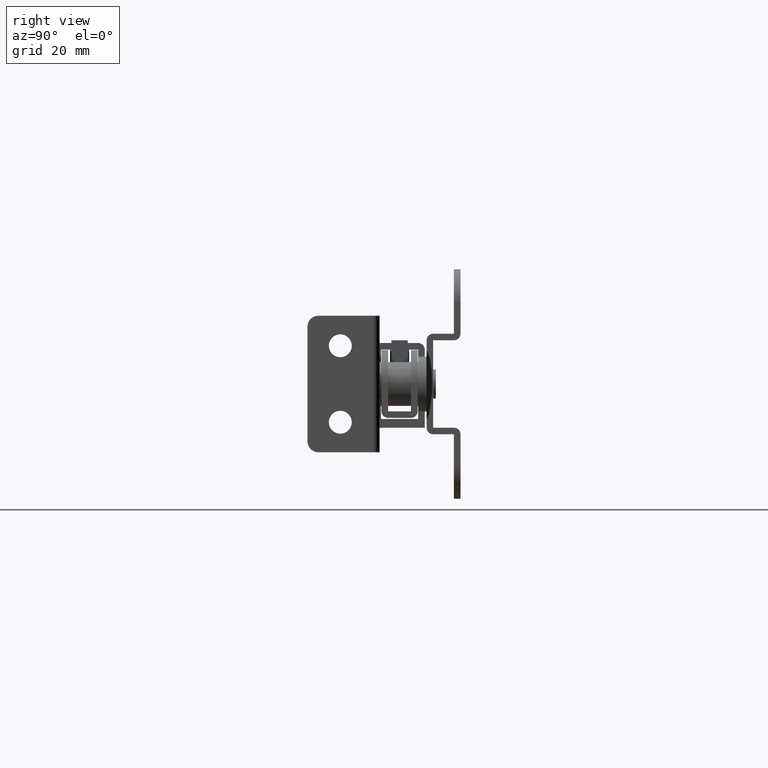
[diagram: clean part render]
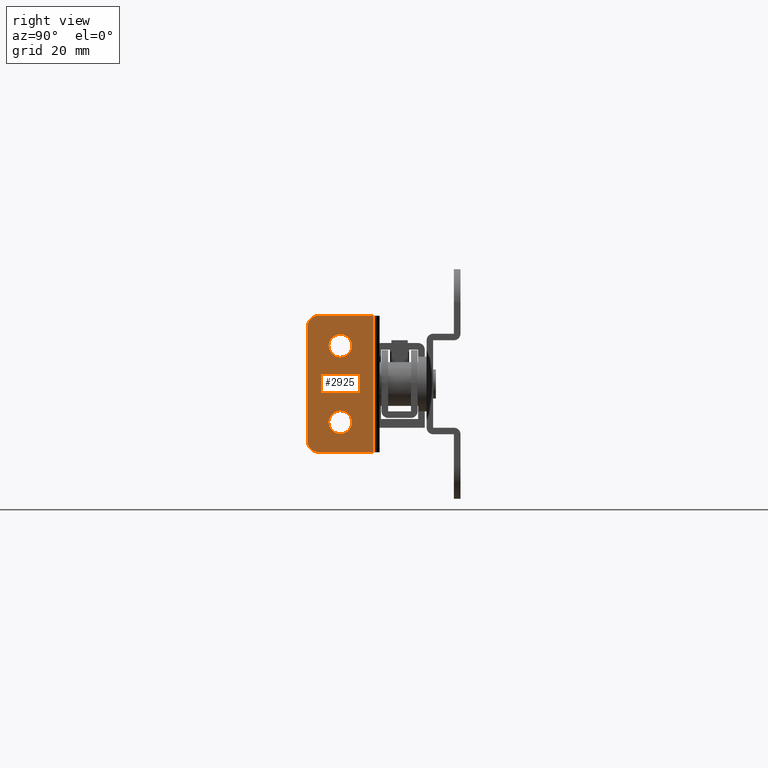
[diagram: same view with one face highlighted and labeled with its STEP entity id]
A machine part, right view. The second image highlights one B-rep face of the part: STEP entity #2925.
In plain terms, the highlighted face is a freeform B-spline surface patch.
Its self-contained STEP definition (entity closure, byte-faithful):
#2117=CARTESIAN_POINT('',(117.999999999938200,-23.445545109248709,8.523286527189388));
#2118=VERTEX_POINT('',#2117);
#2124=CARTESIAN_POINT('',(117.999999999938200,-24.099999999709102,7.000000000102011));
#2125=VERTEX_POINT('',#2124);
#2126=CARTESIAN_POINT('',(117.999999999938200,-23.445545109248709,8.523286527189388));
#2127=CARTESIAN_POINT('',(117.999999999938300,-23.638924080594979,8.340137394173850));
#2128=CARTESIAN_POINT('',(117.999999999938100,-23.975203628270879,7.869539630356290));
#2129=CARTESIAN_POINT('',(117.999999999938300,-24.100452392878701,7.301879188632097));
#2130=CARTESIAN_POINT('',(117.999999999938200,-24.099999999709102,7.000000000102011));
#2131=B_SPLINE_CURVE_WITH_KNOTS('',3,(#2126,#2127,#2128,#2129,#2130),.UNSPECIFIED.,.F.,.U.,(4,1,4),(0.000000061764605,0.798932695895422,1.704359798820024),.UNSPECIFIED.);
#2132=EDGE_CURVE('',#2118,#2125,#2131,.T.);
#2134=CARTESIAN_POINT('',(117.999999999938200,-21.999997608507961,4.900000000103371));
#2135=VERTEX_POINT('',#2134);
#2136=CARTESIAN_POINT('',(117.999999999938200,-24.099999999709102,7.000000000102011));
#2137=CARTESIAN_POINT('',(117.999999999938100,-24.100083386426562,6.793826560186672));
#2138=CARTESIAN_POINT('',(117.999999999938400,-24.038800238829548,6.381535762244367));
#2139=CARTESIAN_POINT('',(117.999999999937900,-23.756738889416830,5.784870824806403));
#2140=CARTESIAN_POINT('',(117.999999999938400,-23.275876688484459,5.279695589836524));
#2141=CARTESIAN_POINT('',(117.999999999938200,-22.652852245502359,4.966217660884849));
#2142=CARTESIAN_POINT('',(117.999999999938200,-22.206166023109809,4.899944679635371));
#2143=CARTESIAN_POINT('',(117.999999999938200,-21.999997608507961,4.900000000103371));
#2144=B_SPLINE_CURVE_WITH_KNOTS('',3,(#2136,#2137,#2138,#2139,#2140,#2141,#2142,#2143),.UNSPECIFIED.,.F.,.U.,(4,1,1,1,1,4),(0.000000256478687,0.618515046249538,1.237039980254354,1.958602151402043,2.680241622231854,3.298756410879459),.UNSPECIFIED.);
#2145=EDGE_CURVE('',#2125,#2135,#2144,.T.);
#2147=CARTESIAN_POINT('',(117.999999999938200,-20.554454890169499,5.476713473014634));
#2148=VERTEX_POINT('',#2147);
#2149=CARTESIAN_POINT('',(117.999999999938200,-21.999997608507961,4.900000000103371));
#2150=CARTESIAN_POINT('',(117.999999999938500,-21.750849491617469,4.899821488517085));
#2151=CARTESIAN_POINT('',(117.999999999938000,-21.219557294986650,4.995728867943323));
#2152=CARTESIAN_POINT('',(117.999999999938200,-20.759052118547601,5.282092269889902));
#2153=CARTESIAN_POINT('',(117.999999999938200,-20.554454890169499,5.476713473014634));
#2154=B_SPLINE_CURVE_WITH_KNOTS('',3,(#2149,#2150,#2151,#2152,#2153),.UNSPECIFIED.,.F.,.U.,(4,1,4),(0.000000059830489,0.747388681683998,1.594393616786401),.UNSPECIFIED.);
#2155=EDGE_CURVE('',#2135,#2148,#2154,.T.);
#2238=CARTESIAN_POINT('',(117.999999999938200,-19.899999999709099,7.000000000102011));
#2239=VERTEX_POINT('',#2238);
#2240=CARTESIAN_POINT('',(117.999999999938200,-20.554454890169499,5.476713473014634));
#2241=CARTESIAN_POINT('',(117.999999999938000,-20.335186474488069,5.684190367586307));
#2242=CARTESIAN_POINT('',(117.999999999938400,-20.009569250364539,6.165777485483534));
#2243=CARTESIAN_POINT('',(117.999999999938100,-19.899769104258048,6.733662453062190));
#2244=CARTESIAN_POINT('',(117.999999999938200,-19.899999999709099,7.000000000102011));
#2245=B_SPLINE_CURVE_WITH_KNOTS('',3,(#2240,#2241,#2242,#2243,#2244),.UNSPECIFIED.,.F.,.U.,(4,1,4),(0.000000061764370,0.905427164687288,1.704359798820019),.UNSPECIFIED.);
#2246=EDGE_CURVE('',#2148,#2239,#2245,.T.);
#2248=CARTESIAN_POINT('',(117.999999999938200,-22.000002390910240,9.100000000100650));
#2249=VERTEX_POINT('',#2248);
#2250=CARTESIAN_POINT('',(117.999999999938200,-19.899999999709099,7.000000000102011));
#2251=CARTESIAN_POINT('',(117.999999999938200,-19.899934645792062,7.206165315034641));
#2252=CARTESIAN_POINT('',(117.999999999938100,-19.966213853316130,7.652877058533131));
#2253=CARTESIAN_POINT('',(117.999999999938500,-20.264066021110910,8.244656984362788));
#2254=CARTESIAN_POINT('',(117.999999999937900,-20.755351226614561,8.735936510341892));
#2255=CARTESIAN_POINT('',(117.999999999938300,-21.347122240386931,9.033785233907993));
#2256=CARTESIAN_POINT('',(117.999999999938200,-21.793837637994059,9.100066511227940));
#2257=CARTESIAN_POINT('',(117.999999999938200,-22.000002390910240,9.100000000100650));
#2258=B_SPLINE_CURVE_WITH_KNOTS('',3,(#2250,#2251,#2252,#2253,#2254,#2255,#2256,#2257),.UNSPECIFIED.,.F.,.U.,(4,1,1,1,1,4),(0.000000256475890,0.618515046247488,1.340154516431128,1.958602151401367,2.680241622231661,3.298756410879455),.UNSPECIFIED.);
#2259=EDGE_CURVE('',#2239,#2249,#2258,.T.);
#2261=CARTESIAN_POINT('',(117.999999999938200,-22.000002390910240,9.100000000100650));
#2262=CARTESIAN_POINT('',(117.999999999938000,-22.199303698405391,9.100068183192349));
#2263=CARTESIAN_POINT('',(117.999999999938400,-22.581249135087639,9.045230505862529));
#2264=CARTESIAN_POINT('',(117.999999999938400,-23.071691305897762,8.829009810949435));
#2265=CARTESIAN_POINT('',(117.999999999938200,-23.337135509377038,8.626188969905103));
#2266=CARTESIAN_POINT('',(117.999999999938200,-23.445545109248709,8.523286527189388));
#2267=B_SPLINE_CURVE_WITH_KNOTS('',3,(#2261,#2262,#2263,#2264,#2265,#2266),.UNSPECIFIED.,.F.,.U.,(4,1,1,4),(0.000000059830703,0.597897979990296,1.145968574553990,1.594393616786403),.UNSPECIFIED.);
#2268=EDGE_CURVE('',#2249,#2118,#2267,.T.);
#2304=CARTESIAN_POINT('',(117.999999999938200,-23.445545109247359,-5.476713472773703));
#2305=VERTEX_POINT('',#2304);
#2311=CARTESIAN_POINT('',(117.999999999938200,-24.099999999707752,-6.999999999861080));
#2312=VERTEX_POINT('',#2311);
#2313=CARTESIAN_POINT('',(117.999999999938200,-23.445545109247359,-5.476713472773703));
#2314=CARTESIAN_POINT('',(117.999999999938300,-23.638923873971251,-5.659861828969426));
#2315=CARTESIAN_POINT('',(117.999999999938200,-23.975204151317399,-6.130461517302607));
#2316=CARTESIAN_POINT('',(117.999999999938100,-24.100452172587950,-6.698120434929575));
#2317=CARTESIAN_POINT('',(117.999999999938200,-24.099999999707752,-6.999999999861080));
#2318=B_SPLINE_CURVE_WITH_KNOTS('',3,(#2313,#2314,#2315,#2316,#2317),.UNSPECIFIED.,.F.,.U.,(4,1,4),(0.000000061764561,0.798932695895465,1.704359798820012),.UNSPECIFIED.);
#2319=EDGE_CURVE('',#2305,#2312,#2318,.T.);
#2321=CARTESIAN_POINT('',(117.999999999938200,-21.999997608506611,-9.099999999859717));
#2322=VERTEX_POINT('',#2321);
#2323=CARTESIAN_POINT('',(117.999999999938200,-24.099999999707752,-6.999999999861080));
#2324=CARTESIAN_POINT('',(117.999999999938200,-24.100529205510629,-7.309379859546336));
#2325=CARTESIAN_POINT('',(117.999999999938200,-23.999420168262329,-7.755571490902312));
#2326=CARTESIAN_POINT('',(117.999999999938300,-23.644434414109821,-8.347993296892556));
#2327=CARTESIAN_POINT('',(117.999999999938200,-23.253013400036401,-8.720616702096480));
#2328=CARTESIAN_POINT('',(117.999999999938300,-22.669888599522910,-9.023085798210541));
#2329=CARTESIAN_POINT('',(117.999999999938200,-22.257743485516169,-9.100230513227155));
#2330=CARTESIAN_POINT('',(117.999999999938200,-21.999997608506611,-9.099999999859717));
#2331=B_SPLINE_CURVE_WITH_KNOTS('',3,(#2323,#2324,#2325,#2326,#2327,#2328,#2329,#2330),.UNSPECIFIED.,.F.,.U.,(4,1,1,1,1,4),(0.000000256477801,0.927782664647858,1.340154516432045,2.061716690306421,2.525612629745482,3.298756410879458),.UNSPECIFIED.);
#2332=EDGE_CURVE('',#2312,#2322,#2331,.T.);
#2334=CARTESIAN_POINT('',(117.999999999938200,-20.554454890168149,-8.523286526948457));
#2335=VERTEX_POINT('',#2334);
#2336=CARTESIAN_POINT('',(117.999999999938200,-21.999997608506611,-9.099999999859717));
#2337=CARTESIAN_POINT('',(117.999999999938300,-21.684334865497618,-9.100540299265886));
#2338=CARTESIAN_POINT('',(117.999999999938500,-21.153447772125730,-8.977774103992561));
#2339=CARTESIAN_POINT('',(117.999999999937800,-20.711005051015949,-8.671972743311601));
#2340=CARTESIAN_POINT('',(117.999999999938200,-20.554454890168149,-8.523286526948457));
#2341=B_SPLINE_CURVE_WITH_KNOTS('',3,(#2336,#2337,#2338,#2339,#2340),.UNSPECIFIED.,.F.,.U.,(4,1,4),(0.000000059830406,0.946659812657628,1.594393616786404),.UNSPECIFIED.);
#2342=EDGE_CURVE('',#2322,#2335,#2341,.T.);
#2425=CARTESIAN_POINT('',(117.999999999938200,-19.899999999707749,-6.999999999861080));
#2426=VERTEX_POINT('',#2425);
#2427=CARTESIAN_POINT('',(117.999999999938200,-20.554454890168149,-8.523286526948457));
#2428=CARTESIAN_POINT('',(117.999999999938200,-20.412750490466252,-8.388903277684600));
#2429=CARTESIAN_POINT('',(117.999999999938200,-20.200780465440008,-8.122313315437943));
#2430=CARTESIAN_POINT('',(117.999999999938200,-19.962104913843230,-7.603531198825718));
#2431=CARTESIAN_POINT('',(117.999999999938400,-19.899868962036152,-7.230817805433988));
#2432=CARTESIAN_POINT('',(117.999999999938200,-19.899999999707749,-6.999999999861080));
#2433=B_SPLINE_CURVE_WITH_KNOTS('',3,(#2427,#2428,#2429,#2430,#2431,#2432),.UNSPECIFIED.,.F.,.U.,(4,1,1,4),(0.000000061764883,0.585875995296798,1.011947724185399,1.704359798820019),.UNSPECIFIED.);
#2434=EDGE_CURVE('',#2335,#2426,#2433,.T.);
#2436=CARTESIAN_POINT('',(117.999999999938200,-22.000002390908900,-4.899999999862441));
#2437=VERTEX_POINT('',#2436);
#2438=CARTESIAN_POINT('',(117.999999999938200,-19.899999999707749,-6.999999999861080));
#2439=CARTESIAN_POINT('',(117.999999999938500,-19.899905773657132,-6.793821810650261));
#2440=CARTESIAN_POINT('',(117.999999999937900,-19.956128977244010,-6.415899383203121));
#2441=CARTESIAN_POINT('',(117.999999999938200,-20.159563194010211,-5.956955893629499));
#2442=CARTESIAN_POINT('',(117.999999999938400,-20.422230672066348,-5.593625905847338));
#2443=CARTESIAN_POINT('',(117.999999999938200,-20.802074610686550,-5.240537388007202));
#2444=CARTESIAN_POINT('',(117.999999999938100,-21.347116856064488,-4.966220310377006));
#2445=CARTESIAN_POINT('',(117.999999999938400,-21.793839027933640,-4.899932362589071));
#2446=CARTESIAN_POINT('',(117.999999999938200,-22.000002390908900,-4.899999999862441));
#2447=B_SPLINE_CURVE_WITH_KNOTS('',3,(#2438,#2439,#2440,#2441,#2442,#2443,#2444,#2445,#2446),.UNSPECIFIED.,.F.,.U.,(4,1,1,1,1,1,4),(0.000000256477163,0.618515046248452,1.133968983420598,1.494785443544233,1.958602151401688,2.680241622231716,3.298756410879463),.UNSPECIFIED.);
#2448=EDGE_CURVE('',#2426,#2437,#2447,.T.);
#2450=CARTESIAN_POINT('',(117.999999999938200,-22.000002390908900,-4.899999999862441));
#2451=CARTESIAN_POINT('',(117.999999999938200,-22.315665079112861,-4.899460916624366));
#2452=CARTESIAN_POINT('',(117.999999999938000,-22.846552793593411,-5.022223202979755));
#2453=CARTESIAN_POINT('',(117.999999999938500,-23.288994612463490,-5.328029063560092));
#2454=CARTESIAN_POINT('',(117.999999999938200,-23.445545109247359,-5.476713472773703));
#2455=B_SPLINE_CURVE_WITH_KNOTS('',3,(#2450,#2451,#2452,#2453,#2454),.UNSPECIFIED.,.F.,.U.,(4,1,4),(0.000000059829977,0.946659812657489,1.594393616786399),.UNSPECIFIED.);
#2456=EDGE_CURVE('',#2437,#2305,#2455,.T.);
#2563=CARTESIAN_POINT('',(117.999999999938200,-28.000000000264500,-10.500000000000000));
#2564=VERTEX_POINT('',#2563);
#2565=CARTESIAN_POINT('',(117.999999999938200,-26.000000000264500,-12.500000000000000));
#2566=VERTEX_POINT('',#2565);
#2567=CARTESIAN_POINT('',(117.999999999938200,-28.000000000264500,-10.500000000000000));
#2568=CARTESIAN_POINT('',(117.999999999938100,-28.000024456887640,-10.679977224553420));
#2569=CARTESIAN_POINT('',(117.999999999938400,-27.944537299937540,-11.089094521989891));
#2570=CARTESIAN_POINT('',(117.999999999937700,-27.696047978930491,-11.614408212679130));
#2571=CARTESIAN_POINT('',(117.999999999938790,-27.297396837693281,-12.054138396026829));
#2572=CARTESIAN_POINT('',(117.999999999937300,-26.752464285417162,-12.399403995140220));
#2573=CARTESIAN_POINT('',(117.999999999938500,-26.278205221555439,-12.500296184083480));
#2574=CARTESIAN_POINT('',(117.999999999938200,-26.000000000264500,-12.500000000000000));
#2575=B_SPLINE_CURVE_WITH_KNOTS('',3,(#2567,#2568,#2569,#2570,#2571,#2572,#2573,#2574),.UNSPECIFIED.,.F.,.U.,(4,1,1,1,1,4),(0.000000245834472,0.539972939309394,1.227244321406511,1.718067199564338,2.307163017640342,3.141671488691245),.UNSPECIFIED.);
#2576=EDGE_CURVE('',#2564,#2566,#2575,.T.);
#2620=CARTESIAN_POINT('',(117.999999999938200,-26.000000000264500,12.500000000000220));
#2621=VERTEX_POINT('',#2620);
#2622=CARTESIAN_POINT('',(117.999999999938200,-28.000000000264500,10.500000000000179));
#2623=VERTEX_POINT('',#2622);
#2624=CARTESIAN_POINT('',(117.999999999938200,-26.000000000264500,12.500000000000220));
#2625=CARTESIAN_POINT('',(117.999999999938300,-26.229097759247018,12.500169751410480));
#2626=CARTESIAN_POINT('',(117.999999999938200,-26.605307475338449,12.434585956738120));
#2627=CARTESIAN_POINT('',(117.999999999938200,-27.137973175040958,12.174682174585460));
#2628=CARTESIAN_POINT('',(117.999999999938300,-27.510350682605122,11.845382058958361));
#2629=CARTESIAN_POINT('',(117.999999999938000,-27.811817684357059,11.394206237007930));
#2630=CARTESIAN_POINT('',(117.999999999938400,-27.967819409197180,10.958165151951761));
#2631=CARTESIAN_POINT('',(117.999999999938200,-28.000005812092422,10.630894526704040));
#2632=CARTESIAN_POINT('',(117.999999999938200,-28.000000000264500,10.500000000000179));
#2633=B_SPLINE_CURVE_WITH_KNOTS('',3,(#2624,#2625,#2626,#2627,#2628,#2629,#2630,#2631,#2632),.UNSPECIFIED.,.F.,.U.,(4,1,1,1,1,1,4),(0.000000245836384,0.687238665442902,1.129043560872798,1.767182762222255,2.159897377573043,2.748968473501667,3.141671488691294),.UNSPECIFIED.);
#2634=EDGE_CURVE('',#2621,#2623,#2633,.T.);
#2869=CARTESIAN_POINT('',(117.999999999938200,-28.000000000264500,-10.500000000000000));
#2870=CARTESIAN_POINT('',(117.999999999938200,-28.000000000264500,10.500000000000179));
#2871=QUASI_UNIFORM_CURVE('',1,(#2869,#2870),.UNSPECIFIED.,.F.,.U.);
#2872=EDGE_CURVE('',#2564,#2623,#2871,.T.);
#2880=CARTESIAN_POINT('',(117.999999999938200,-28.599399977009998,-13.748749951545159));
#2881=CARTESIAN_POINT('',(117.999999999938200,-28.599399977009998,13.748750622097720));
#2882=CARTESIAN_POINT('',(117.999999999938200,-15.400599701577320,-13.748749951545159));
#2883=CARTESIAN_POINT('',(117.999999999938200,-15.400599701577320,13.748750622097720));
#2884=B_SPLINE_SURFACE_WITH_KNOTS('',1,1,((#2880,#2882),(#2881,#2883)),.UNSPECIFIED.,.F.,.F.,.U.,(2,2),(2,2),(0.0,27.497500573642881),(0.0,13.198800275432680),.UNSPECIFIED.);
#2885=CARTESIAN_POINT('',(117.999999999938200,-16.000000000187899,12.500000000000300));
#2886=VERTEX_POINT('',#2885);
#2887=CARTESIAN_POINT('',(117.999999999938200,-16.000000000187899,12.500000000000300));
#2888=CARTESIAN_POINT('',(117.999999999938200,-26.000000000264500,12.500000000000220));
#2889=QUASI_UNIFORM_CURVE('',1,(#2887,#2888),.UNSPECIFIED.,.F.,.U.);
#2890=EDGE_CURVE('',#2886,#2621,#2889,.T.);
#2891=ORIENTED_EDGE('',*,*,#2890,.T.);
#2892=ORIENTED_EDGE('',*,*,#2634,.T.);
#2893=ORIENTED_EDGE('',*,*,#2872,.F.);
#2894=ORIENTED_EDGE('',*,*,#2576,.T.);
#2895=CARTESIAN_POINT('',(117.999999999938200,-16.000000000187899,-12.500000000000000));
#2896=VERTEX_POINT('',#2895);
#2897=CARTESIAN_POINT('',(117.999999999938200,-16.000000000187899,-12.500000000000000));
#2898=CARTESIAN_POINT('',(117.999999999938200,-26.000000000264500,-12.500000000000000));
#2899=QUASI_UNIFORM_CURVE('',1,(#2897,#2898),.UNSPECIFIED.,.F.,.U.);
#2900=EDGE_CURVE('',#2896,#2566,#2899,.T.);
#2901=ORIENTED_EDGE('',*,*,#2900,.F.);
#2902=CARTESIAN_POINT('',(117.999999999938200,-16.000000000187899,-12.500000000000000));
#2903=CARTESIAN_POINT('',(117.999999999938200,-16.000000000187899,12.500000000000300));
#2904=QUASI_UNIFORM_CURVE('',1,(#2902,#2903),.UNSPECIFIED.,.F.,.U.);
#2905=EDGE_CURVE('',#2896,#2886,#2904,.T.);
#2906=ORIENTED_EDGE('',*,*,#2905,.T.);
#2907=EDGE_LOOP('',(#2891,#2892,#2893,#2894,#2901,#2906));
#2908=FACE_OUTER_BOUND('',#2907,.T.);
#2909=ORIENTED_EDGE('',*,*,#2448,.F.);
#2910=ORIENTED_EDGE('',*,*,#2434,.F.);
#2911=ORIENTED_EDGE('',*,*,#2342,.F.);
#2912=ORIENTED_EDGE('',*,*,#2332,.F.);
#2913=ORIENTED_EDGE('',*,*,#2319,.F.);
#2914=ORIENTED_EDGE('',*,*,#2456,.F.);
#2915=EDGE_LOOP('',(#2909,#2910,#2911,#2912,#2913,#2914));
#2916=FACE_BOUND('',#2915,.T.);
#2917=ORIENTED_EDGE('',*,*,#2259,.F.);
#2918=ORIENTED_EDGE('',*,*,#2246,.F.);
#2919=ORIENTED_EDGE('',*,*,#2155,.F.);
#2920=ORIENTED_EDGE('',*,*,#2145,.F.);
#2921=ORIENTED_EDGE('',*,*,#2132,.F.);
#2922=ORIENTED_EDGE('',*,*,#2268,.F.);
#2923=EDGE_LOOP('',(#2917,#2918,#2919,#2920,#2921,#2922));
#2924=FACE_BOUND('',#2923,.T.);
#2925=ADVANCED_FACE('',(#2908,#2916,#2924),#2884,.F.);